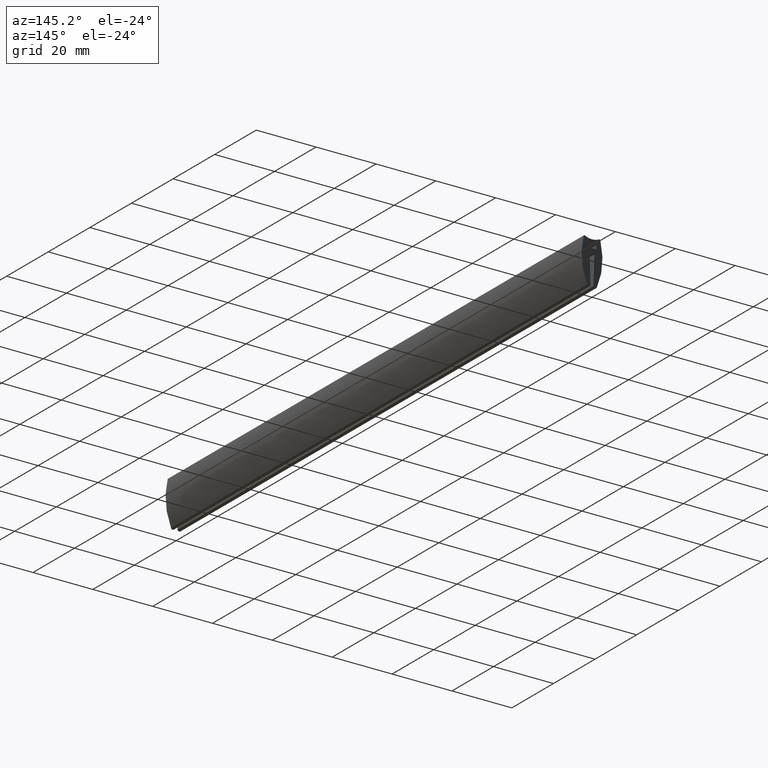
[diagram: clean part render]
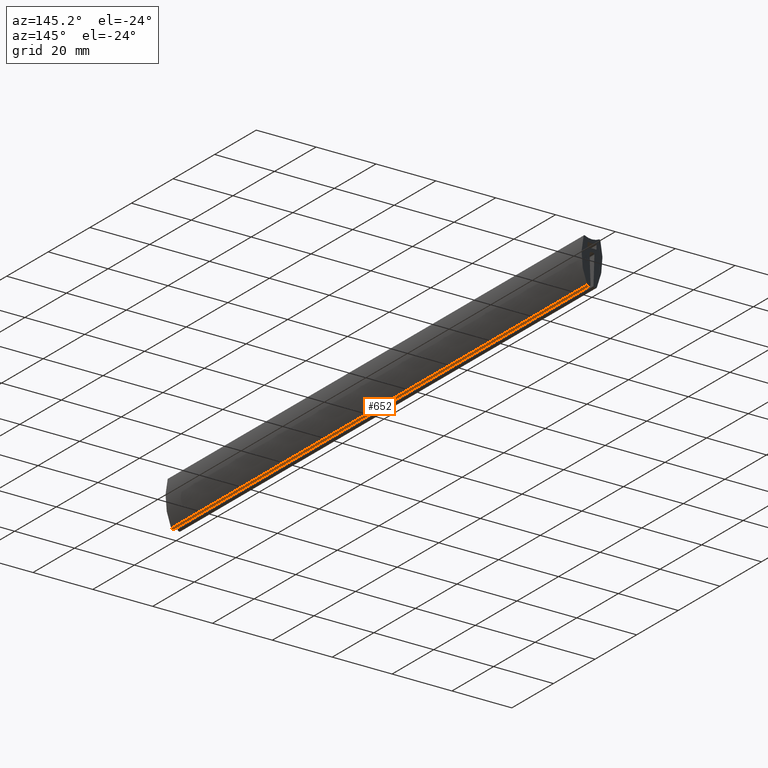
[diagram: same view with one face highlighted and labeled with its STEP entity id]
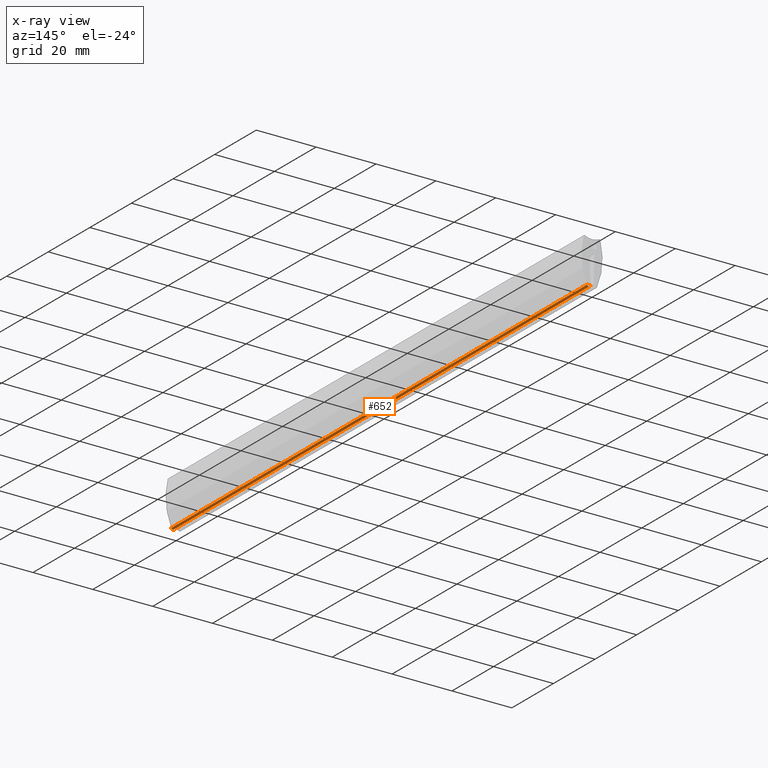
[diagram: x-ray of the same camera — body ghosted, the highlighted face saturated]
A machine part, auxiliary view. The second image highlights one B-rep face of the part: STEP entity #652.
The next image is the same camera in x-ray: the body ghosted, the highlighted face saturated — about 0% of this face is hidden behind the body in this view.
In plain terms, the highlighted face is a freeform B-spline surface patch.
Its self-contained STEP definition (entity closure, byte-faithful):
#49=CARTESIAN_POINT('',(1.627461204812235,0.0,-14.022243352566640));
#50=VERTEX_POINT('',#49);
#195=CARTESIAN_POINT('',(0.500306627621377,0.0,-13.765540948000400));
#196=VERTEX_POINT('',#195);
#202=CARTESIAN_POINT('',(0.500306627621371,0.0,-13.765540948000400));
#203=CARTESIAN_POINT('',(0.484639230749580,0.0,-14.250813836433942));
#204=CARTESIAN_POINT('',(0.958043095489516,0.0,-14.358628605471710));
#205=CARTESIAN_POINT('',(1.431446960229453,0.0,-14.466443374509472));
#206=CARTESIAN_POINT('',(1.627461204812235,0.0,-14.022243352566640));
#214=(BOUNDED_CURVE()B_SPLINE_CURVE(2,(#202,#203,#204,#205,#206),.UNSPECIFIED.,.F.,.U.)B_SPLINE_CURVE_WITH_KNOTS((3,2,3),(0.0,0.500000000000000,1.0),.UNSPECIFIED.)CURVE()GEOMETRIC_REPRESENTATION_ITEM()RATIONAL_B_SPLINE_CURVE((1.0,0.771517611672409,1.0,0.771517611672409,1.0))REPRESENTATION_ITEM(''));
#215=EDGE_CURVE('',#196,#50,#214,.T.);
#327=CARTESIAN_POINT('',(1.627461204812235,200.0,-14.022243352566640));
#328=VERTEX_POINT('',#327);
#344=CARTESIAN_POINT('',(0.500306627621377,200.0,-13.765540948000400));
#345=VERTEX_POINT('',#344);
#346=CARTESIAN_POINT('',(0.500306627621371,200.0,-13.765540948000400));
#347=CARTESIAN_POINT('',(0.484639230749580,200.000000000000090,-14.250813836433942));
#348=CARTESIAN_POINT('',(0.958043095489516,200.0,-14.358628605471710));
#349=CARTESIAN_POINT('',(1.431446960229453,200.000000000000090,-14.466443374509472));
#350=CARTESIAN_POINT('',(1.627461204812235,200.0,-14.022243352566640));
#358=(BOUNDED_CURVE()B_SPLINE_CURVE(2,(#346,#347,#348,#349,#350),.UNSPECIFIED.,.F.,.U.)B_SPLINE_CURVE_WITH_KNOTS((3,2,3),(0.0,0.500000000000000,1.0),.UNSPECIFIED.)CURVE()GEOMETRIC_REPRESENTATION_ITEM()RATIONAL_B_SPLINE_CURVE((1.0,0.771517611672409,1.0,0.771517611672409,1.0))REPRESENTATION_ITEM(''));
#359=EDGE_CURVE('',#345,#328,#358,.T.);
#620=CARTESIAN_POINT('',(1.637316959718508,205.0,-13.998520519926910));
#621=CARTESIAN_POINT('',(1.637316959718508,-5.125000000000000,-13.998520519926910));
#622=CARTESIAN_POINT('',(1.451306974846208,205.0,-14.475349410532548));
#623=CARTESIAN_POINT('',(1.451306974846208,-5.125000000000000,-14.475349410532548));
#624=CARTESIAN_POINT('',(0.953230963821774,205.0,-14.357511417379330));
#625=CARTESIAN_POINT('',(0.953230963821774,-5.125000000000000,-14.357511417379330));
#626=CARTESIAN_POINT('',(0.455154952797341,205.0,-14.239673424226121));
#627=CARTESIAN_POINT('',(0.455154952797341,-5.125000000000000,-14.239673424226121));
#628=CARTESIAN_POINT('',(0.502527371733459,205.0,-13.730044775784410));
#629=CARTESIAN_POINT('',(0.502527371733459,-5.125000000000000,-13.730044775784410));
#637=(BOUNDED_SURFACE()B_SPLINE_SURFACE(1,2,((#620,#622,#624,#626,#628),(#621,#623,#625,#627,#629)),.UNSPECIFIED.,.F.,.F.,.U.)B_SPLINE_SURFACE_WITH_KNOTS((2,2),(3,2,3),(0.0,210.125000000000000),(0.0,1.0,2.0),.UNSPECIFIED.)GEOMETRIC_REPRESENTATION_ITEM()RATIONAL_B_SPLINE_SURFACE(((1.0,0.754709580222772,1.0,0.754709580222772,1.0),(1.0,0.754709580222772,1.0,0.754709580222772,1.0)))REPRESENTATION_ITEM('')SURFACE());
#638=ORIENTED_EDGE('',*,*,#215,.F.);
#639=CARTESIAN_POINT('',(0.500306627621377,200.0,-13.765540948000400));
#640=CARTESIAN_POINT('',(0.500306627621377,0.0,-13.765540948000400));
#641=QUASI_UNIFORM_CURVE('',1,(#639,#640),.UNSPECIFIED.,.F.,.U.);
#642=EDGE_CURVE('',#345,#196,#641,.T.);
#643=ORIENTED_EDGE('',*,*,#642,.F.);
#644=ORIENTED_EDGE('',*,*,#359,.T.);
#645=CARTESIAN_POINT('',(1.627461204812235,200.0,-14.022243352566640));
#646=CARTESIAN_POINT('',(1.627461204812235,0.0,-14.022243352566640));
#647=QUASI_UNIFORM_CURVE('',1,(#645,#646),.UNSPECIFIED.,.F.,.U.);
#648=EDGE_CURVE('',#328,#50,#647,.T.);
#649=ORIENTED_EDGE('',*,*,#648,.T.);
#650=EDGE_LOOP('',(#638,#643,#644,#649));
#651=FACE_OUTER_BOUND('',#650,.T.);
#652=ADVANCED_FACE('',(#651),#637,.T.);